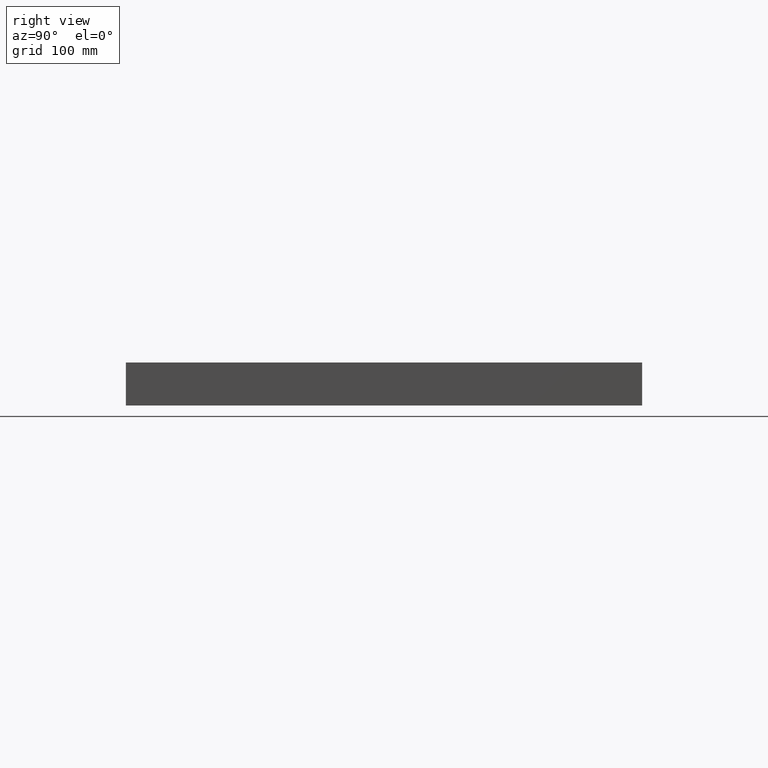
[diagram: clean part render]
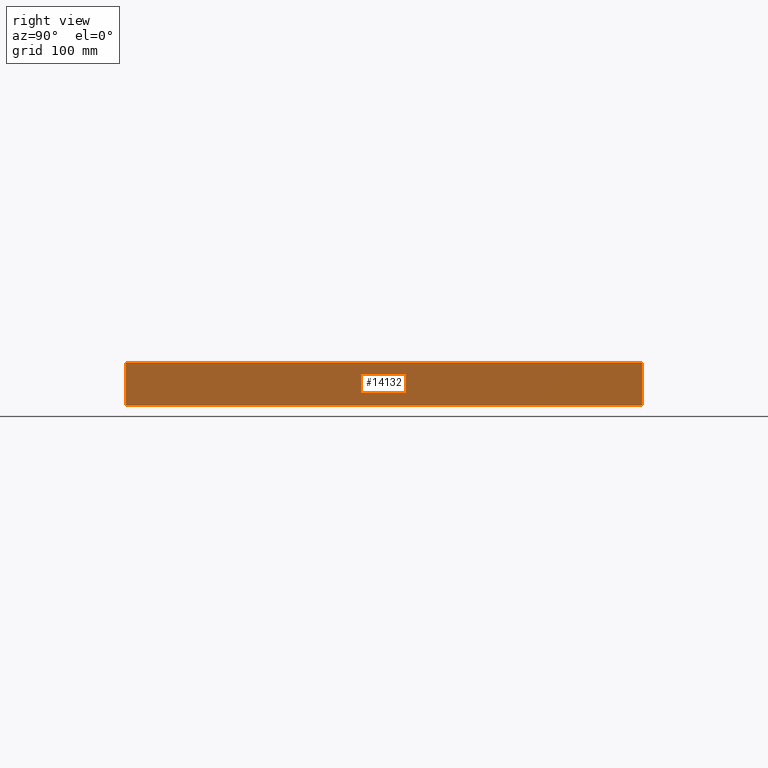
[diagram: same view with one face highlighted and labeled with its STEP entity id]
A machine part, right view. The second image highlights one B-rep face of the part: STEP entity #14132.
In plain terms, the highlighted planar face has unit normal (-1, -0, 0).
Its self-contained STEP definition (entity closure, byte-faithful):
#1394 = PLANE ( 'NONE',  #7854 ) ;
#2100 = VERTEX_POINT ( 'NONE', #28757 ) ;
#2133 = LINE ( 'NONE', #27608, #30740 ) ;
#4032 = LINE ( 'NONE', #26886, #16186 ) ;
#7374 = VERTEX_POINT ( 'NONE', #31003 ) ;
#7507 = DIRECTION ( 'NONE',  ( -1.850371707708594300E-016, 1.000000000000000000, -0.0000000000000000000 ) ) ;
#7854 = AXIS2_PLACEMENT_3D ( 'NONE', #26374, #15349, #34782 ) ;
#8233 = EDGE_CURVE ( 'NONE', #11171, #13863, #22302, .T. ) ;
#8803 = ORIENTED_EDGE ( 'NONE', *, *, #27796, .F. ) ;
#10940 = CARTESIAN_POINT ( 'NONE',  ( 300.0000000000000600, -300.0000000000000600, 0.0000000000000000000 ) ) ;
#11165 = LINE ( 'NONE', #31821, #32423 ) ;
#11171 = VERTEX_POINT ( 'NONE', #10940 ) ;
#11366 = CARTESIAN_POINT ( 'NONE',  ( 299.9999999999999400, 299.9999999999999400, 0.0000000000000000000 ) ) ;
#13863 = VERTEX_POINT ( 'NONE', #11366 ) ;
#14066 = VECTOR ( 'NONE', #7507, 1000.000000000000000 ) ;
#14132 = ADVANCED_FACE ( 'NONE', ( #18248 ), #1394, .F. ) ;
#15232 = DIRECTION ( 'NONE',  ( -0.0000000000000000000, -0.0000000000000000000, -1.000000000000000000 ) ) ;
#15349 = DIRECTION ( 'NONE',  ( -1.000000000000000000, -1.850371707708594600E-016, 0.0000000000000000000 ) ) ;
#16186 = VECTOR ( 'NONE', #18537, 1000.000000000000000 ) ;
#17082 = ORIENTED_EDGE ( 'NONE', *, *, #17262, .T. ) ;
#17262 = EDGE_CURVE ( 'NONE', #2100, #11171, #11165, .T. ) ;
#17670 = ORIENTED_EDGE ( 'NONE', *, *, #22804, .F. ) ;
#18248 = FACE_OUTER_BOUND ( 'NONE', #20629, .T. ) ;
#18537 = DIRECTION ( 'NONE',  ( -1.850371707708594300E-016, 1.000000000000000000, -0.0000000000000000000 ) ) ;
#19373 = DIRECTION ( 'NONE',  ( -0.0000000000000000000, -0.0000000000000000000, -1.000000000000000000 ) ) ;
#20629 = EDGE_LOOP ( 'NONE', ( #31947, #8803, #17670, #17082 ) ) ;
#22302 = LINE ( 'NONE', #26879, #14066 ) ;
#22804 = EDGE_CURVE ( 'NONE', #2100, #7374, #4032, .T. ) ;
#26374 = CARTESIAN_POINT ( 'NONE',  ( 299.9999999999999400, 299.9999999999999400, 50.00000000000000000 ) ) ;
#26879 = CARTESIAN_POINT ( 'NONE',  ( 299.9999999999999400, 299.9999999999999400, 0.0000000000000000000 ) ) ;
#26886 = CARTESIAN_POINT ( 'NONE',  ( 299.9999999999999400, 299.9999999999999400, 50.00000000000000000 ) ) ;
#27608 = CARTESIAN_POINT ( 'NONE',  ( 299.9999999999999400, 299.9999999999999400, 50.00000000000000000 ) ) ;
#27796 = EDGE_CURVE ( 'NONE', #7374, #13863, #2133, .T. ) ;
#28757 = CARTESIAN_POINT ( 'NONE',  ( 300.0000000000000600, -300.0000000000000600, 50.00000000000000000 ) ) ;
#30740 = VECTOR ( 'NONE', #19373, 1000.000000000000000 ) ;
#31003 = CARTESIAN_POINT ( 'NONE',  ( 299.9999999999999400, 299.9999999999999400, 50.00000000000000000 ) ) ;
#31821 = CARTESIAN_POINT ( 'NONE',  ( 300.0000000000000600, -300.0000000000000600, 50.00000000000000000 ) ) ;
#31947 = ORIENTED_EDGE ( 'NONE', *, *, #8233, .T. ) ;
#32423 = VECTOR ( 'NONE', #15232, 1000.000000000000000 ) ;
#34782 = DIRECTION ( 'NONE',  ( 1.850371707708594600E-016, -1.000000000000000000, 0.0000000000000000000 ) ) ;